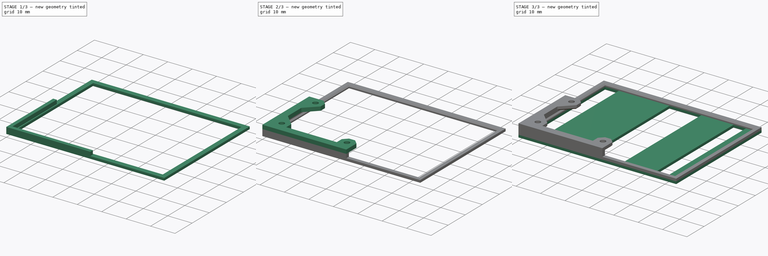
[diagram: build sequence overview — one tinted view per stage of 3, left to right]
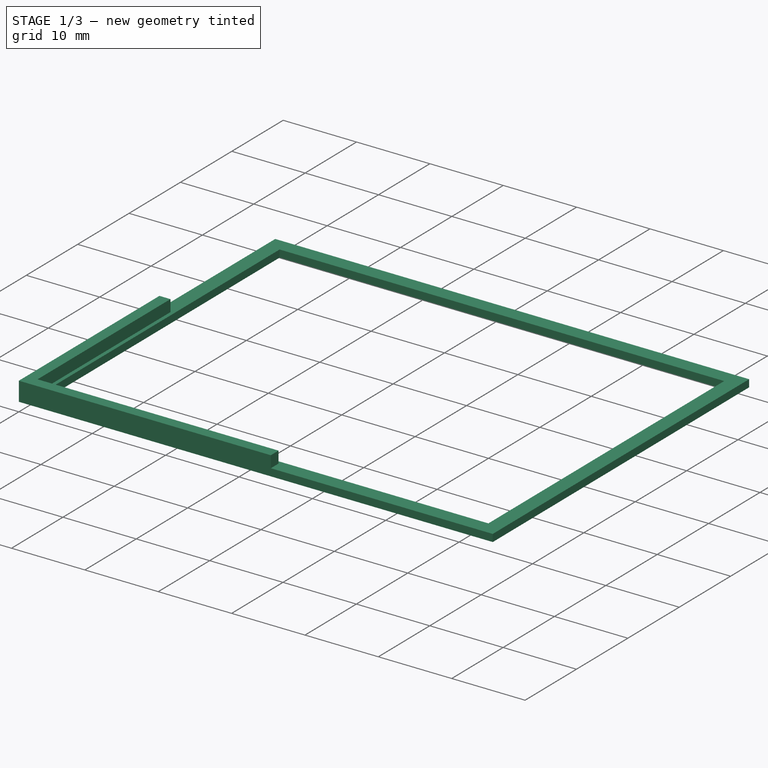
[diagram: stage 1 of 3 — iso view after this stage's code; geometry added in this stage tinted green]
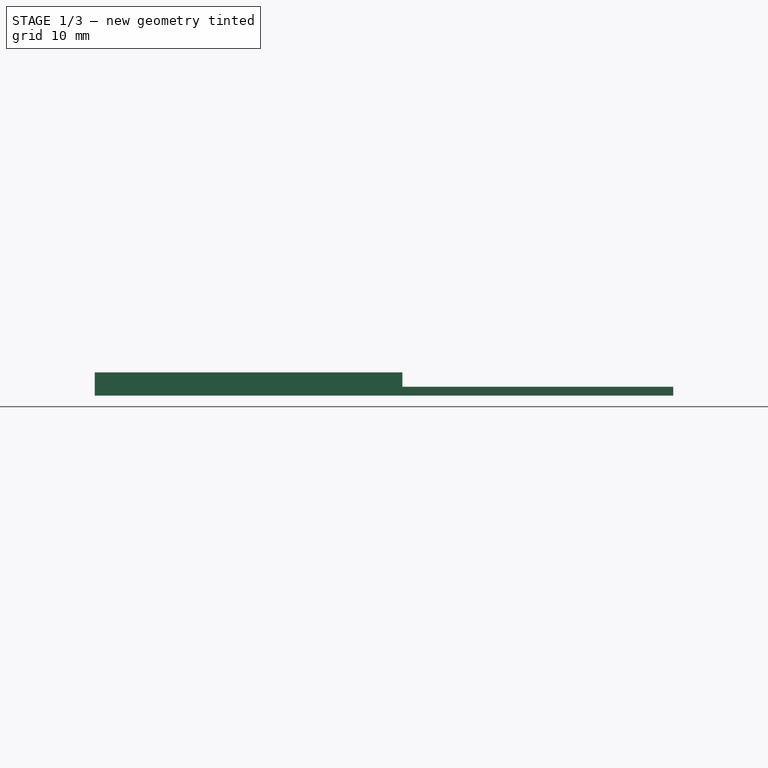
[diagram: stage 1 of 3 — front view after this stage's code; geometry added in this stage tinted green]
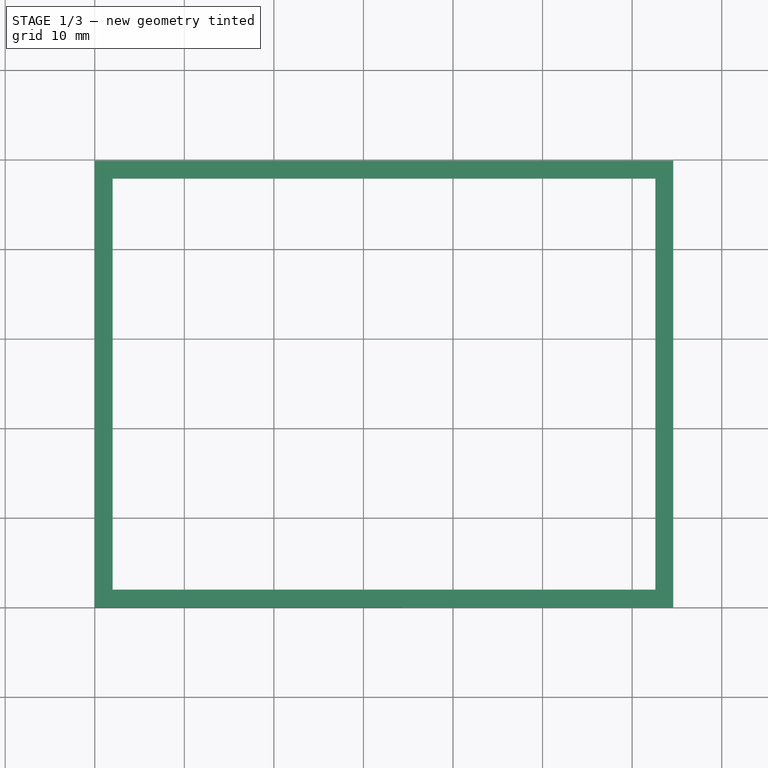
[diagram: stage 1 of 3 — top view after this stage's code; geometry added in this stage tinted green]
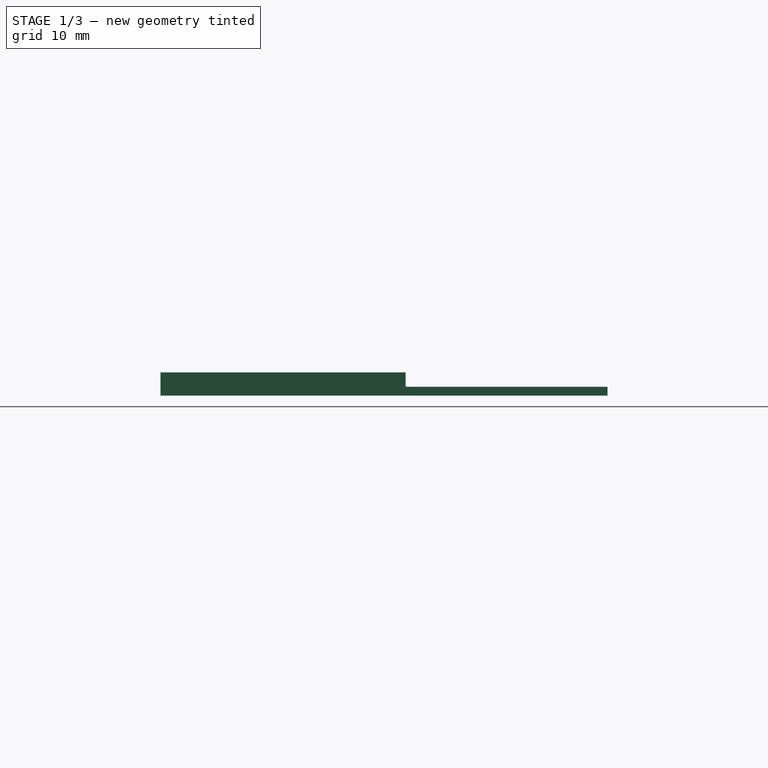
[diagram: stage 1 of 3 — right view after this stage's code; geometry added in this stage tinted green]
FCSTD DOCUMENT  (FreeCAD 0.20RUnknown)
Label: robot_pcb_holder
License: All rights reserved
LicenseURL: http://en.wikipedia.org/wiki/All_rights_reserved
objects: Sketcher::SketchObject×4, PartDesign::Pad×4, PartDesign::Chamfer×2, PartDesign::Body×1
note: 17 computed .brp shape members not serialized (recipe doc carries the construction recipe); baked Part::Feature solids carry a one-line shape summary decoded from their .brp

FEATURE [Sketcher::SketchObject] Sketch002  label="Base sketch"
  FullyConstrained = true
  MapMode = 5
  Support = -> [XY_Plane]
  sketch-geometry (8):
    g0: LineSegment StartX=64.59 StartY=49.9 StartZ=0 EndX=64.59 EndY=0 EndZ=0
    g1: LineSegment StartX=64.59 StartY=0 StartZ=0 EndX=0 EndY=0 EndZ=0
    g2: LineSegment StartX=2 StartY=2 StartZ=0 EndX=62.59 EndY=2 EndZ=0
    g3: LineSegment StartX=62.59 StartY=2 StartZ=0 EndX=62.59 EndY=47.9 EndZ=0
    g4: LineSegment StartX=62.59 StartY=47.9 StartZ=0 EndX=2 EndY=47.9 EndZ=0
    g5: LineSegment StartX=2 StartY=47.9 StartZ=0 EndX=2 EndY=2 EndZ=0
    g6: LineSegment StartX=0 StartY=0 StartZ=0 EndX=0 EndY=49.9 EndZ=0
    g7: LineSegment StartX=0 StartY=49.9 StartZ=0 EndX=64.59 EndY=49.9 EndZ=0
  constraints (23):
    c: Vertical(g0)
    c: Coincident(g1,g0)
    c: Horizontal(g4)
    c: Coincident(g5,g4)
    c: PointOnObject(g6,g-2)
    c: Coincident(g7,g6)
    c: Horizontal(g7)
    c: Vertical(g5)
    c: Vertical(g3)
    c: DistanceY(g4,g6) = 2
    c: Coincident(g2,g3)
    c: Coincident(g5,g2)
    c: Coincident(g4,g3)
    c: Coincident(g6,g1)
    c: Coincident(g1,g-1)
    c: Horizontal(g2)
    c: Distance(g7) = 64.59
    c: Coincident(g7,g0)
    c: Horizontal(g1)
    c: DistanceX(g1,g2) = 2
    c: DistanceX(g2,g0) = 2
    c: DistanceY(g1,g2) = 2
    c: Distance(g6) = 49.9
FEATURE [PartDesign::Pad] Pad  label="Base"
  Direction = (0,0,1)
  Length = 1
  Length2 = 10
  Profile = -> Sketch002
  ReferenceAxis = -> Sketch002 [N_Axis]
  Type = 0
FEATURE [Sketcher::SketchObject] Sketch006  label="Pad sketch"
  FullyConstrained = true
  MapMode = 5
  Placement = pos=(0,0,1) rot=(0,0,1;0rad)
  Support = -> [Pad]
  expr: Constraints[15] = 24.36 + 3
  expr: Constraints[16] = 31.34 + 3
  sketch-geometry (6):
    g0: LineSegment StartX=0 StartY=27.36 StartZ=0 EndX=0 EndY=0 EndZ=0
    g1: LineSegment StartX=0 StartY=0 StartZ=0 EndX=34.34 EndY=0 EndZ=0
    g2: LineSegment StartX=34.34 StartY=0 StartZ=0 EndX=34.34 EndY=1.5 EndZ=0
    g3: LineSegment StartX=34.34 StartY=1.5 StartZ=0 EndX=1.5 EndY=1.5 EndZ=0
    g4: LineSegment StartX=1.5 StartY=1.5 StartZ=0 EndX=1.5 EndY=27.36 EndZ=0
    g5: LineSegment StartX=0 StartY=27.36 StartZ=0 EndX=1.5 EndY=27.36 EndZ=0
  constraints (17):
    c: PointOnObject(g0,g-2)
    c: Coincident(g0,g-1)
    c: Coincident(g1,g0)
    c: PointOnObject(g1,g-1)
    c: Coincident(g2,g1)
    c: Vertical(g2)
    c: Coincident(g3,g2)
    c: Coincident(g4,g3)
    c: Coincident(g5,g0)
    c: Coincident(g5,g4)
    c: Horizontal(g5)
    c: Horizontal(g3)
    c: Vertical(g4)
    c: DistanceX(g0,g3) = 1.5
    c: DistanceY(g0,g3) = 1.5
    c: DistanceY(g0,g0) = 27.36
    c: DistanceX(g0,g1) = 34.34
FEATURE [PartDesign::Pad] Pad001  label="Pad"
  BaseFeature = -> Pad
  Direction = (0,0,1)
  Length = 1.6
  Length2 = 10
  Profile = -> Sketch006
  ReferenceAxis = -> Sketch006 [N_Axis]
  Type = 0
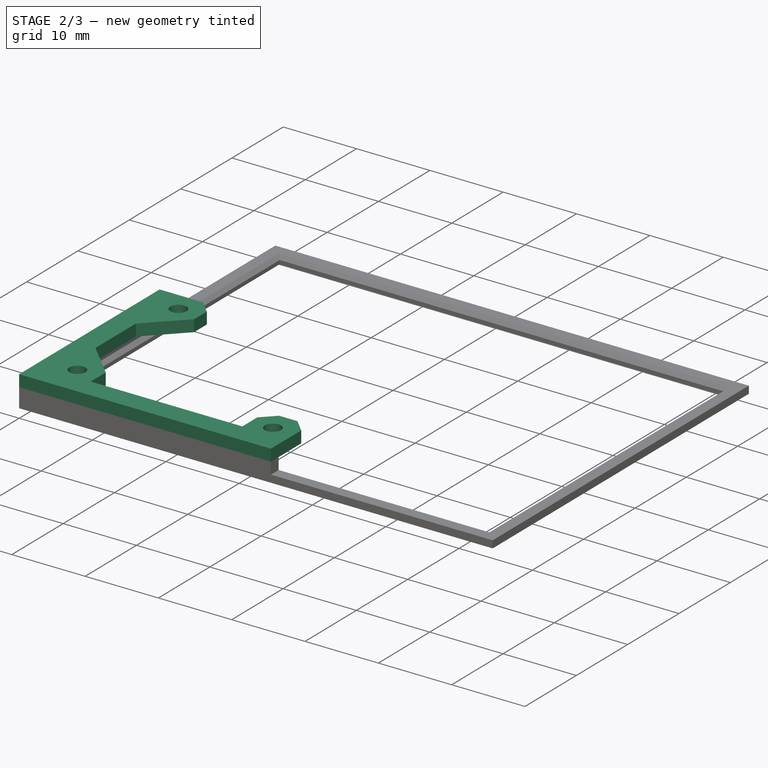
[diagram: stage 2 of 3 — iso view after this stage's code; geometry added in this stage tinted green]
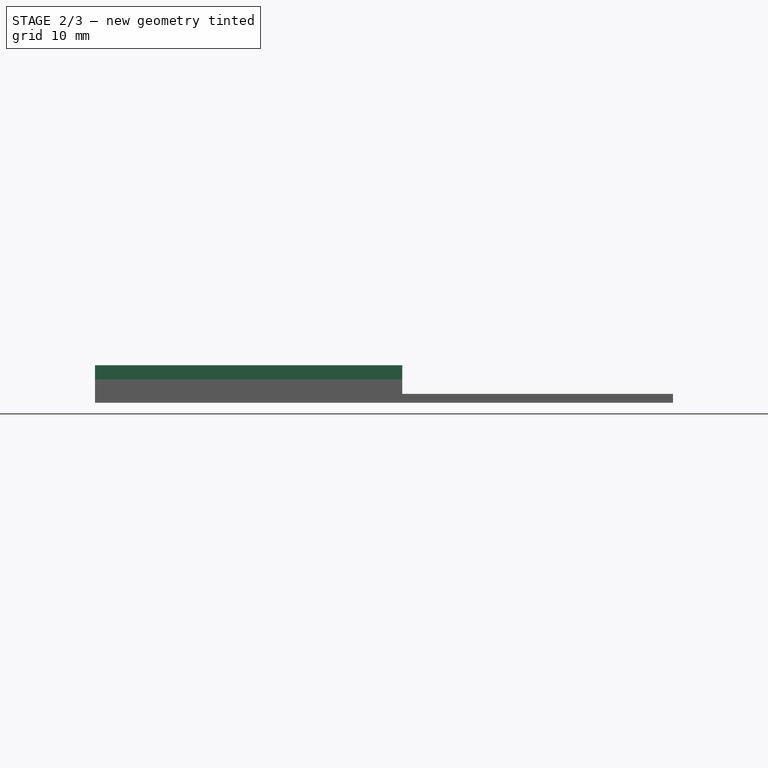
[diagram: stage 2 of 3 — front view after this stage's code; geometry added in this stage tinted green]
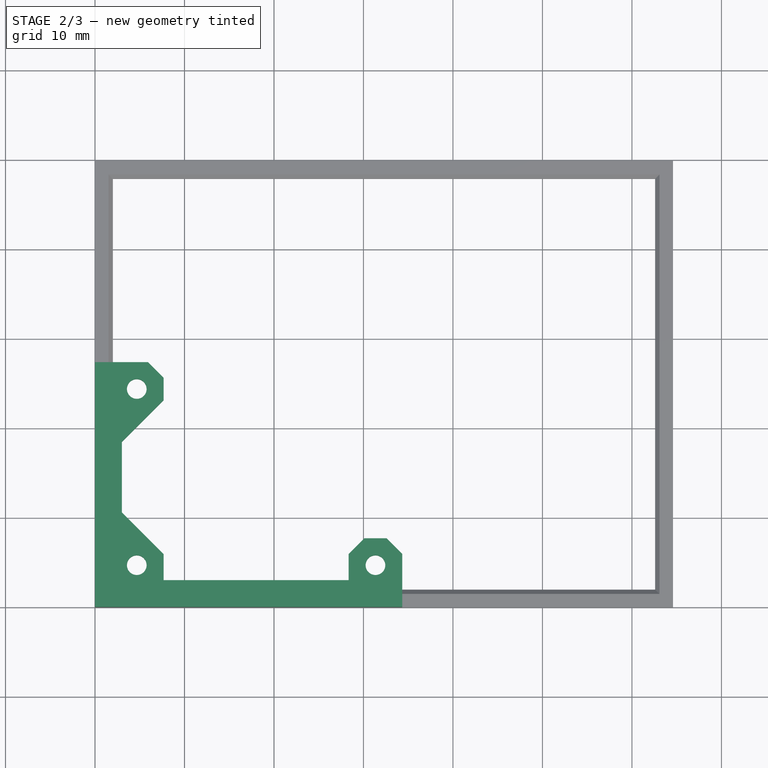
[diagram: stage 2 of 3 — top view after this stage's code; geometry added in this stage tinted green]
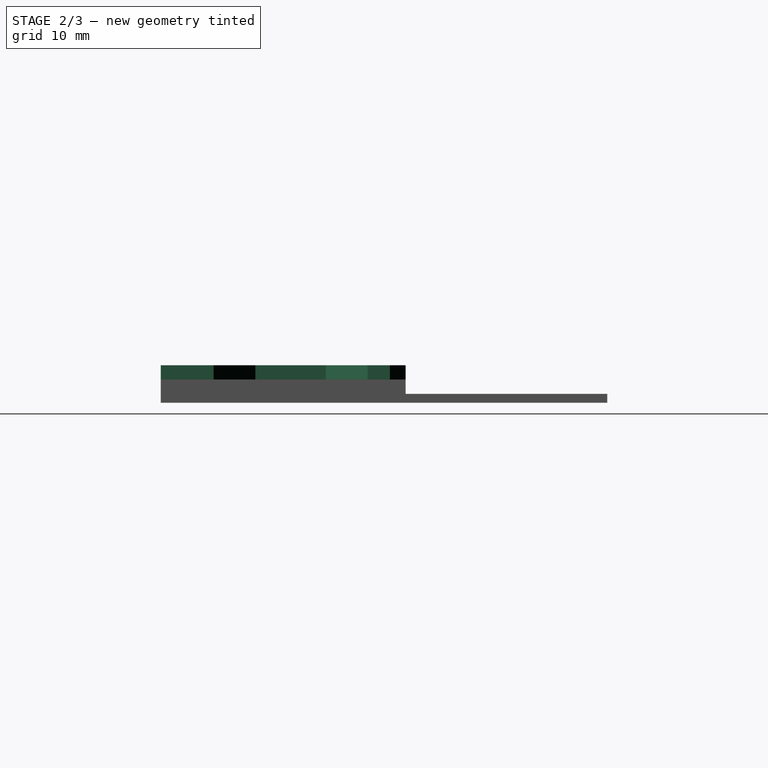
[diagram: stage 2 of 3 — right view after this stage's code; geometry added in this stage tinted green]
FEATURE [Sketcher::SketchObject] Sketch005  label="Bracket sketch"
  FullyConstrained = true
  MapMode = 5
  Placement = pos=(0,0,2.6) rot=(0,0,1;0rad)
  Support = -> [Pad001]
  sketch-geometry (27):
    g0: LineSegment StartX=0 StartY=0 StartZ=0 EndX=34.34 EndY=0 EndZ=0
    g1: LineSegment StartX=34.34 StartY=0 StartZ=0 EndX=34.34 EndY=5.91264 EndZ=0
    g2: LineSegment StartX=34.34 StartY=5.91264 StartZ=0 EndX=32.5826 EndY=7.67 EndZ=0
    g3: LineSegment StartX=32.5826 StartY=7.67 StartZ=0 EndX=30.0974 EndY=7.67 EndZ=0
    g4: LineSegment StartX=30.0974 StartY=7.67 StartZ=0 EndX=28.34 EndY=5.91264 EndZ=0
    g5: LineSegment StartX=28.34 StartY=5.91264 StartZ=0 EndX=28.34 EndY=3 EndZ=0
    g6: LineSegment StartX=28.34 StartY=3 StartZ=0 EndX=7.67 EndY=3 EndZ=0
    g7: LineSegment StartX=7.67 StartY=25.6026 StartZ=0 EndX=5.91264 EndY=27.36 EndZ=0
    g8: LineSegment StartX=5.91264 StartY=27.36 StartZ=0 EndX=0 EndY=27.36 EndZ=0
    g9: LineSegment StartX=0 StartY=27.36 StartZ=0 EndX=0 EndY=0 EndZ=0
    g10: LineSegment StartX=7.67 StartY=3 StartZ=0 EndX=7.67 EndY=0 EndZ=0
    g11: LineSegment StartX=3 StartY=10.5826 StartZ=0 EndX=0 EndY=10.5826 EndZ=0
    g12: GeomPoint X=31.34 Y=4.67 Z=0
    g13: LineSegment StartX=7.67 StartY=24.36 StartZ=0 EndX=0 EndY=24.36 EndZ=0
    g14: GeomPoint X=4.67 Y=24.36 Z=0
    g15: GeomPoint X=4.67 Y=4.67 Z=0
    g16: Circle CenterX=31.34 CenterY=4.67 CenterZ=0 NormalX=0 NormalY=0 NormalZ=1 AngleXU=0 Radius=1.1
    g17: Circle CenterX=4.67 CenterY=24.36 CenterZ=0 NormalX=0 NormalY=0 NormalZ=1 AngleXU=0 Radius=1.1
    g18: Circle CenterX=4.67 CenterY=4.67 CenterZ=0 NormalX=0 NormalY=0 NormalZ=1 AngleXU=0 Radius=1.1
    g19: LineSegment StartX=31.34 StartY=7.67 StartZ=0 EndX=31.34 EndY=4.67 EndZ=0
    g20: LineSegment StartX=7.67 StartY=23.1174 StartZ=0 EndX=3 EndY=18.4474 EndZ=0
    g21: LineSegment StartX=3 StartY=18.4474 StartZ=0 EndX=3 EndY=10.5826 EndZ=0
    g22: LineSegment StartX=7.67 StartY=25.6026 StartZ=0 EndX=7.67 EndY=23.1174 EndZ=0
    g23: LineSegment StartX=7.67 StartY=3 StartZ=0 EndX=7.67 EndY=5.91264 EndZ=0
    g24: LineSegment StartX=7.67 StartY=5.91264 StartZ=0 EndX=3 EndY=10.5826 EndZ=0
    g25: LineSegment StartX=4.67 StartY=4.67 StartZ=0 EndX=6.79132 EndY=6.79132 EndZ=0
    g26: LineSegment StartX=4.67 StartY=24.36 StartZ=0 EndX=6.79132 EndY=22.2387 EndZ=0
  constraints (75):
    c: Coincident(g0,g-1)
    c: PointOnObject(g0,g-1)
    c: Coincident(g1,g0)
    c: Vertical(g1)
    c: Coincident(g2,g1)
    c: Coincident(g3,g2)
    c: Coincident(g4,g3)
    c: Coincident(g5,g4)
    c: Vertical(g5)
    c: Coincident(g6,g5)
    c: Horizontal(g6)
    c: Coincident(g8,g7)
    c: PointOnObject(g8,g-2)
    c: Coincident(g9,g8)
    c: Coincident(g9,g0)
    c: Horizontal(g8)
    c: Horizontal(g3)
    c: Equal(g4,g2)
    c: Equal(g4,g7)
    c: Angle(g5,g4) = 2.35619
    c: Angle(g2,g1) = 2.35619
    c: PointOnObject(g10,g0)
    c: Vertical(g10)
    c: PointOnObject(g11,g9)
    c: Horizontal(g11)
    c: Equal(g10,g11)
    c: PointOnObject(g13,g9)
    c: Horizontal(g13)
    c: DistanceY(g0,g15) = 4.67
    c: DistanceX(g0,g15) = 4.67
    c: DistanceX(g13,g14) = 4.67
    c: DistanceY(g0,g12) = 4.67
    c: Coincident(g16,g12)
    c: Coincident(g17,g14)
    c: Coincident(g18,g15)
    c: Radius(g18) = 1.1
    c: Radius(g17) = 1.1
    c: Radius(g16) = 1.1
    c: DistanceY(g0,g13) = 24.36
    c: DistanceX(g0,g16) = 31.34
    c: PointOnObject(g19,g3)
    c: Coincident(g19,g16)
    c: Vertical(g19)
    c: Equal(g2,g3)
    c: DistanceX(g17,g7) = 3
    c: Coincident(g21,g20)
    c: Vertical(g21)
    c: Coincident(g22,g7)
    c: Coincident(g22,g20)
    c: Vertical(g22)
    c: PointOnObject(g13,g22)
    c: Angle(g21,g20) = 2.35619
    c: Coincident(g23,g6)
    c: Coincident(g24,g23)
    c: Coincident(g24,g21)
    c: Angle(g24,g21) = 2.35619
    c: Vertical(g23)
    c: Distance(g19) = 3
    c: DistanceX(g4,g16) = 3
    c: DistanceX(g16,g1) = 3
    c: DistanceX(g18,g23) = 3
    c: Coincident(g25,g18)
    c: PointOnObject(g25,g24)
    c: Distance(g25) = 3
    c: Perpendicular(g24,g25)
    c: Angle(g7,g22) = 2.35619
    c: DistanceY(g17,g7) = 3
    c: Coincident(g26,g17)
    c: PointOnObject(g26,g20)
    c: Perpendicular(g26,g20)
    c: Distance(g26) = 3
    c: PointOnObject(g17,g13)
    c: Distance(g11) = 3
    c: Coincident(g10,g6)
    c: Coincident(g21,g11)
FEATURE [PartDesign::Pad] Pad002  label="Bracket"
  BaseFeature = -> Pad001
  Direction = (0,0,1)
  Length = 1.6
  Length2 = 10
  Profile = -> Sketch005
  ReferenceAxis = -> Sketch005 [N_Axis]
  Type = 0
FEATURE [PartDesign::Chamfer] Chamfer
  Angle = 45
  Base = -> Pad002 [Edge23,Edge22,Edge24,Edge25]
  BaseFeature = -> Pad002
  ChamferType = 0
  FlipDirection = false
  Size = 0.49
  Size2 = 1
  SupportTransform = false
  UseAllEdges = false
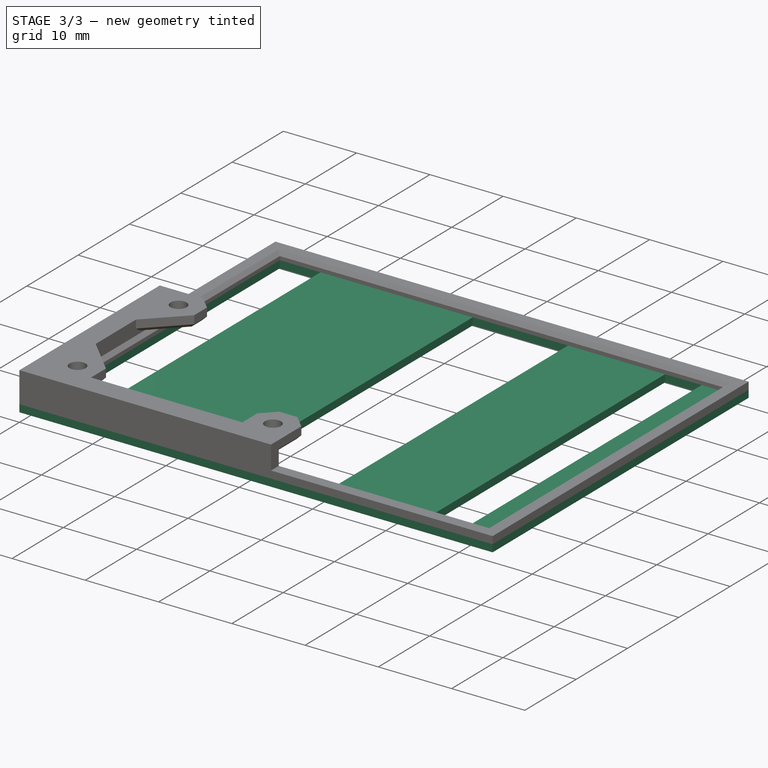
[diagram: stage 3 of 3 — iso view after this stage's code; geometry added in this stage tinted green]
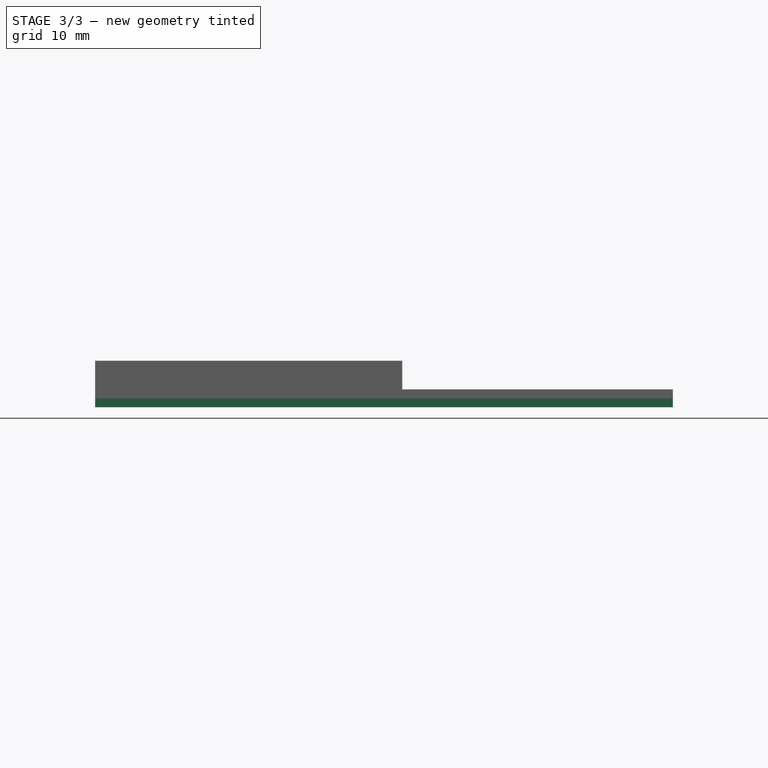
[diagram: stage 3 of 3 — front view after this stage's code; geometry added in this stage tinted green]
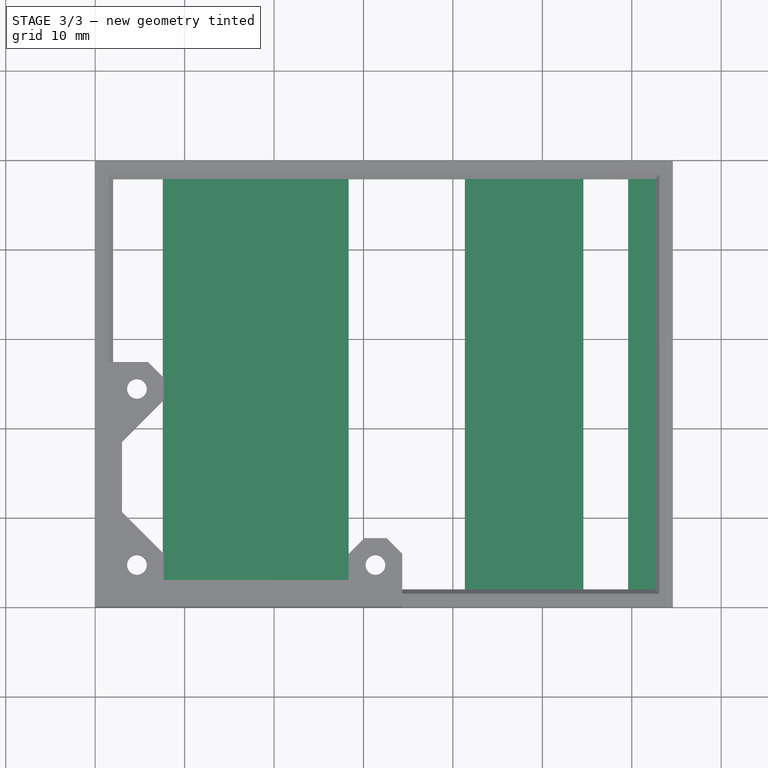
[diagram: stage 3 of 3 — top view after this stage's code; geometry added in this stage tinted green]
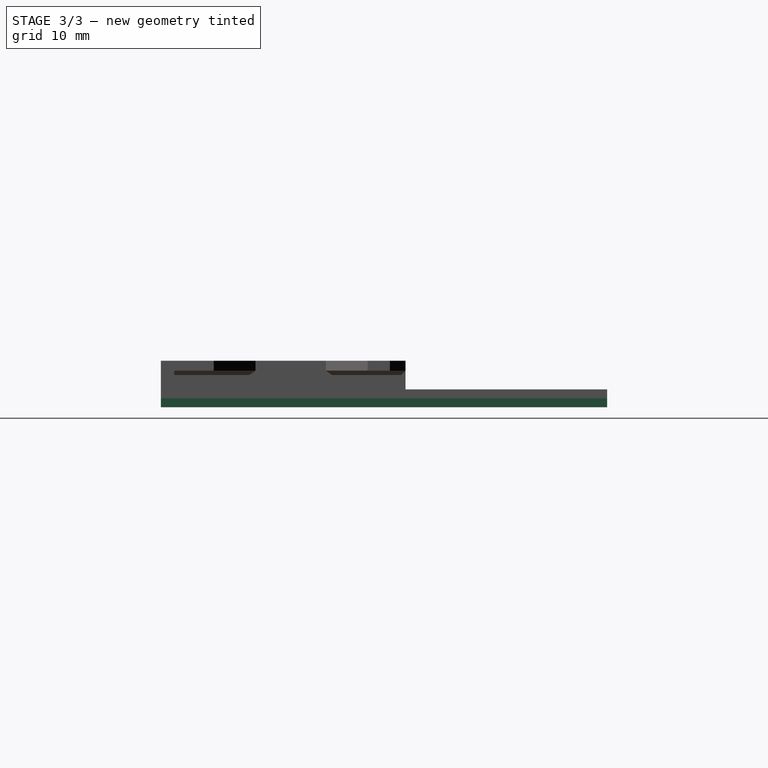
[diagram: stage 3 of 3 — right view after this stage's code; geometry added in this stage tinted green]
FEATURE [Sketcher::SketchObject] Sketch  label="Floor sketch"
  FullyConstrained = true
  MapMode = 5
  Placement = pos=(0,0,0) rot=(1,0,0;3.14159rad)
  Support = -> [Chamfer]
  expr: Constraints[31] = 31.34 - 3
  expr: Constraints[32] = 10 + 3
  expr: Constraints[46] = 4.56 + 3
  sketch-geometry (16):
    g0: LineSegment StartX=0 StartY=0 StartZ=0 EndX=0 EndY=-49.9 EndZ=0
    g1: LineSegment StartX=0 StartY=-49.9 StartZ=0 EndX=64.59 EndY=-49.9 EndZ=0
    g2: LineSegment StartX=28.34 StartY=-2 StartZ=0 EndX=41.34 EndY=-2 EndZ=0
    g3: LineSegment StartX=64.59 StartY=-49.9 StartZ=0 EndX=64.59 EndY=0 EndZ=0
    g4: LineSegment StartX=64.59 StartY=0 StartZ=0 EndX=0 EndY=0 EndZ=0
    g5: LineSegment StartX=28.34 StartY=-2 StartZ=0 EndX=28.34 EndY=-47.9 EndZ=0
    g6: LineSegment StartX=28.34 StartY=-47.9 StartZ=0 EndX=41.34 EndY=-47.9 EndZ=0
    g7: LineSegment StartX=41.34 StartY=-47.9 StartZ=0 EndX=41.34 EndY=-2 EndZ=0
    g8: LineSegment StartX=54.59 StartY=-2 StartZ=0 EndX=54.59 EndY=-47.9 EndZ=0
    g9: LineSegment StartX=54.59 StartY=-47.9 StartZ=0 EndX=59.59 EndY=-47.9 EndZ=0
    g10: LineSegment StartX=59.59 StartY=-47.9 StartZ=0 EndX=59.59 EndY=-2 EndZ=0
    g11: LineSegment StartX=59.59 StartY=-2 StartZ=0 EndX=54.59 EndY=-2 EndZ=0
    g12: LineSegment StartX=2 StartY=-2 StartZ=0 EndX=2 EndY=-47.9 EndZ=0
    g13: LineSegment StartX=2 StartY=-47.9 StartZ=0 EndX=7.56 EndY=-47.9 EndZ=0
    g14: LineSegment StartX=7.56 StartY=-47.9 StartZ=0 EndX=7.56 EndY=-2 EndZ=0
    g15: LineSegment StartX=7.56 StartY=-2 StartZ=0 EndX=2 EndY=-2 EndZ=0
  constraints (47):
    c: Coincident(g0,g-1)
    c: PointOnObject(g0,g-2)
    c: Coincident(g1,g0)
    c: Horizontal(g1)
    c: Horizontal(g2)
    c: Coincident(g3,g1)
    c: Coincident(g4,g3)
    c: Coincident(g4,g0)
    c: Horizontal(g4)
    c: Vertical(g3)
    c: Coincident(g5,g2)
    c: Vertical(g5)
    c: Coincident(g6,g5)
    c: Horizontal(g6)
    c: Coincident(g7,g6)
    c: Coincident(g7,g2)
    c: Vertical(g8)
    c: Coincident(g9,g8)
    c: Horizontal(g9)
    c: Coincident(g10,g9)
    c: Vertical(g10)
    c: Coincident(g11,g10)
    c: Coincident(g11,g8)
    c: Horizontal(g11)
    c: DistanceY(g8,g2) = 0
    c: DistanceY(g6,g8) = 0
    c: Vertical(g7)
    c: DistanceY(g0,g5) = 2
    c: DistanceY(g2,g0) = 2
    c: DistanceX(g0,g3) = 64.59
    c: DistanceY(g0,g0) = 49.9
    c: DistanceX(g0,g5) = 28.34
    c: DistanceX(g5,g6) = 13
    c: DistanceX(g8,g1) = 10
    c: DistanceX(g9,g1) = 5
    c: Vertical(g12)
    c: Coincident(g13,g12)
    c: Horizontal(g13)
    c: Coincident(g14,g13)
    c: Vertical(g14)
    c: Coincident(g15,g14)
    c: Coincident(g15,g12)
    c: Horizontal(g15)
    c: DistanceY(g14,g2) = 0
    c: DistanceY(g5,g13) = 0
    c: DistanceX(g0,g12) = 2
    c: DistanceX(g0,g13) = 7.56
FEATURE [PartDesign::Pad] Pad003  label="Floor"
  BaseFeature = -> Chamfer
  Direction = (0,0,-1)
  Length = 1
  Length2 = 10
  Profile = -> Sketch
  ReferenceAxis = -> Sketch [N_Axis]
  Type = 0
FEATURE [PartDesign::Chamfer] Chamfer001
  Angle = 45
  Base = -> Pad003 [Edge67,Edge78,Edge82,Edge77,Edge76,Edge75,Edge73,Edge72,Edge79,Edge80,Edge69,Edge70,Edge81,Edge83]
  BaseFeature = -> Pad003
  ChamferType = 0
  FlipDirection = false
  Size = 0.49
  Size2 = 1
  SupportTransform = false
  UseAllEdges = false
FEATURE [PartDesign::Body] Body
  Group = -> [Sketch002,Sketch005,Sketch006,Pad,Pad001,Pad002,Chamfer,Sketch,Pad003,Chamfer001]
  Origin = -> Origin
  Tip = -> Chamfer001
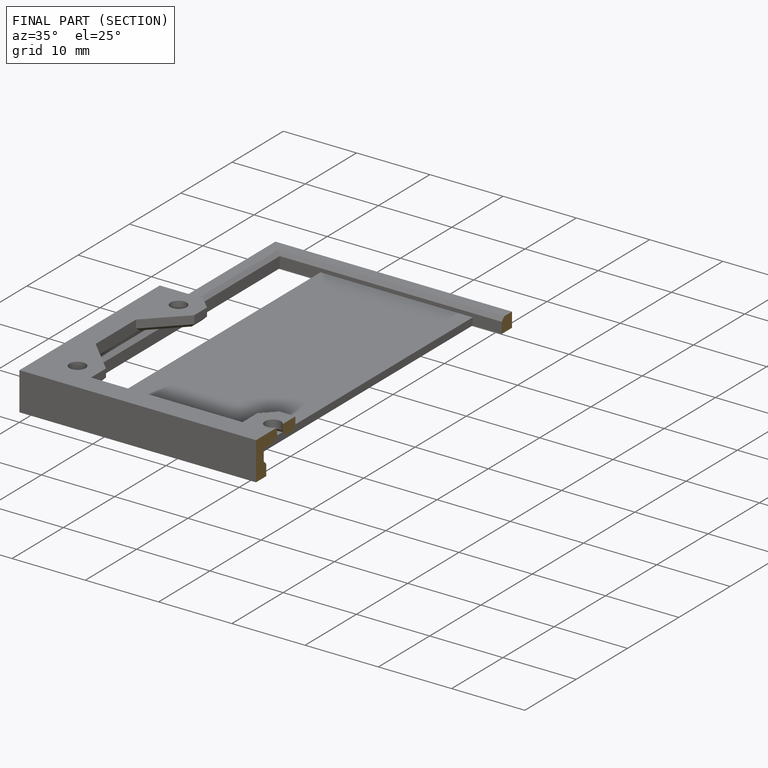
[diagram: finished part — half-section view (interior)]
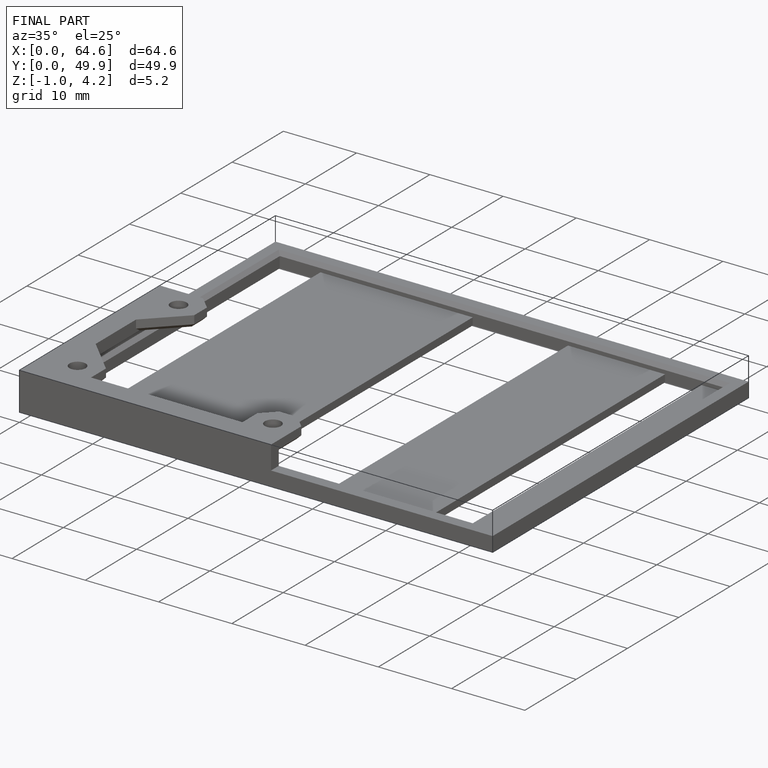
[diagram: finished part — iso view with bounding-box wireframe]
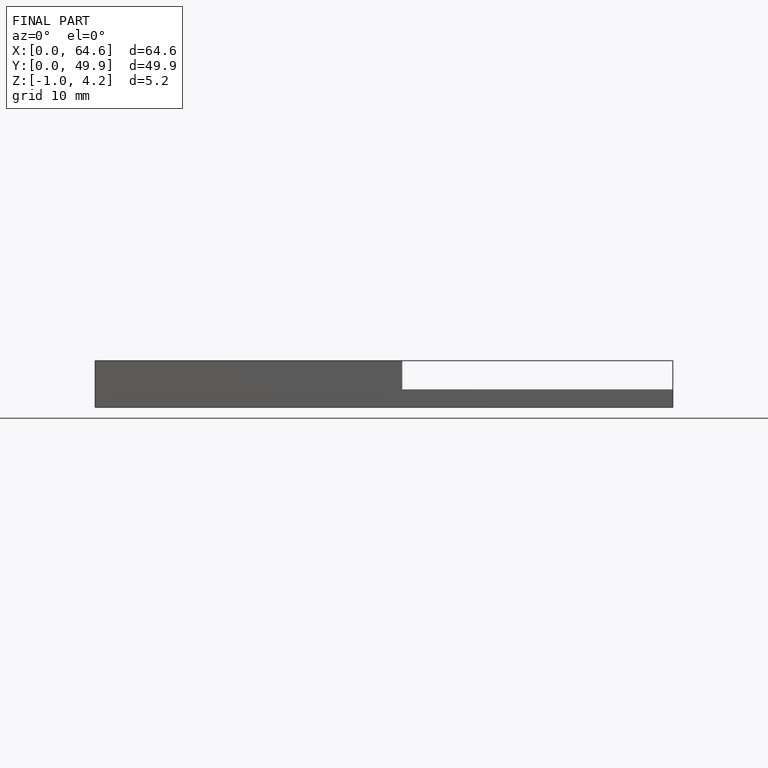
[diagram: finished part — front view with bounding-box wireframe]
